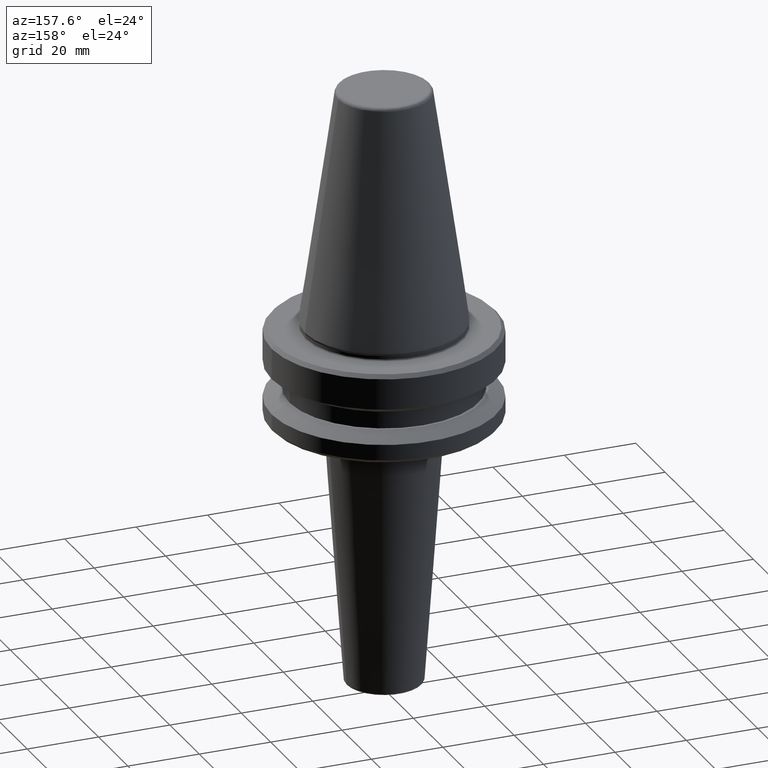
[diagram: clean part render]
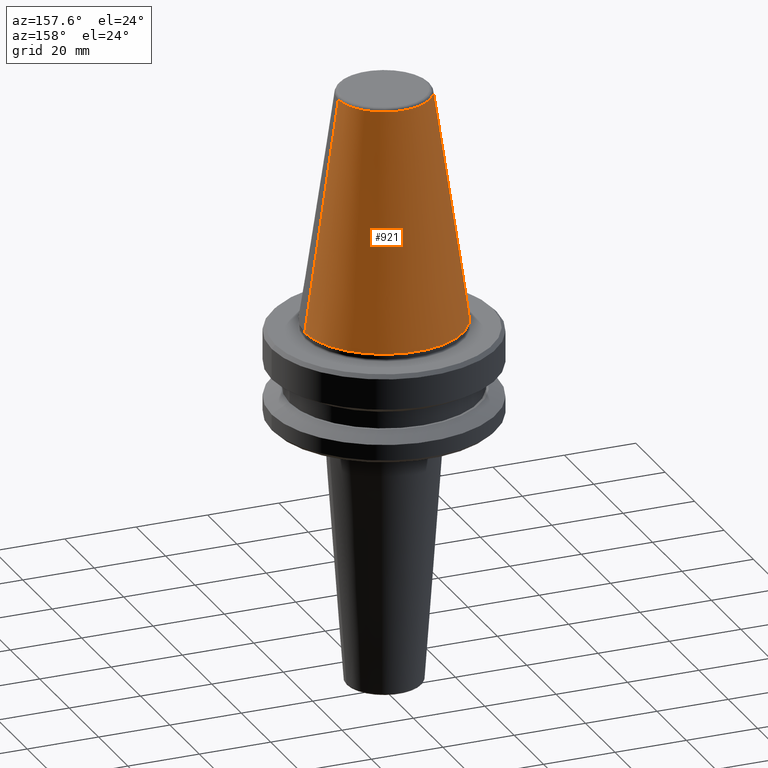
[diagram: same view with one face highlighted and labeled with its STEP entity id]
A machine part, auxiliary view. The second image highlights one B-rep face of the part: STEP entity #921.
In plain terms, the highlighted conical surface has half-angle 8.297 deg.
Its self-contained STEP definition (entity closure, byte-faithful):
#8 = CIRCLE ( 'NONE', #724, 12.81220206925736900 ) ;
#14 = DIRECTION ( 'NONE',  ( -0.0000000000000000000, -0.0000000000000000000, 1.000000000000000000 ) ) ;
#21 = ORIENTED_EDGE ( 'NONE', *, *, #643, .T. ) ;
#75 = EDGE_CURVE ( 'NONE', #84, #112, #98, .T. ) ;
#83 = DIRECTION ( 'NONE',  ( -1.000000000000000000, 0.0000000000000000000, 0.0000000000000000000 ) ) ;
#84 = VERTEX_POINT ( 'NONE', #1024 ) ;
#98 = CIRCLE ( 'NONE', #792, 22.22499999999993700 ) ;
#103 = DIRECTION ( 'NONE',  ( 0.1443081888881795900, 1.767265616126607700E-017, -0.9895327920891826600 ) ) ;
#112 = VERTEX_POINT ( 'NONE', #711 ) ;
#162 = FACE_OUTER_BOUND ( 'NONE', #790, .T. ) ;
#163 = DIRECTION ( 'NONE',  ( 0.0000000000000000000, 0.0000000000000000000, -1.000000000000000000 ) ) ;
#191 = ORIENTED_EDGE ( 'NONE', *, *, #608, .F. ) ;
#204 = AXIS2_PLACEMENT_3D ( 'NONE', #486, #163, #83 ) ;
#277 = VECTOR ( 'NONE', #962, 1000.000000000000000 ) ;
#279 = EDGE_CURVE ( 'NONE', #285, #112, #483, .T. ) ;
#285 = VERTEX_POINT ( 'NONE', #454 ) ;
#335 = DIRECTION ( 'NONE',  ( -0.0000000000000000000, -0.0000000000000000000, 1.000000000000000000 ) ) ;
#350 = DIRECTION ( 'NONE',  ( 1.000000000000000000, 0.0000000000000000000, 0.0000000000000000000 ) ) ;
#389 = ORIENTED_EDGE ( 'NONE', *, *, #279, .F. ) ;
#395 = VECTOR ( 'NONE', #103, 1000.000000000000000 ) ;
#444 = CONICAL_SURFACE ( 'NONE', #204, 12.81220206925736900, 0.1448138077623198300 ) ;
#454 = CARTESIAN_POINT ( 'NONE',  ( -12.81220206925736900, 0.0000000000000000000, -0.8556918111122247000 ) ) ;
#471 = CARTESIAN_POINT ( 'NONE',  ( -12.81220206925736900, 0.0000000000000000000, -0.8556918111122247000 ) ) ;
#483 = LINE ( 'NONE', #471, #277 ) ;
#486 = CARTESIAN_POINT ( 'NONE',  ( 0.0000000000000000000, 0.0000000000000000000, -0.8556918111122247000 ) ) ;
#503 = CARTESIAN_POINT ( 'NONE',  ( 0.0000000000000000000, 0.0000000000000000000, -0.8556918111122247000 ) ) ;
#566 = VERTEX_POINT ( 'NONE', #937 ) ;
#608 = EDGE_CURVE ( 'NONE', #566, #285, #8, .T. ) ;
#643 = EDGE_CURVE ( 'NONE', #566, #84, #814, .T. ) ;
#673 = CARTESIAN_POINT ( 'NONE',  ( 12.81220206925736900, 1.569042225414513200E-015, -0.8556918111122247000 ) ) ;
#711 = CARTESIAN_POINT ( 'NONE',  ( -22.22499999999993700, 2.721777511104985000E-015, -65.40000000000057400 ) ) ;
#724 = AXIS2_PLACEMENT_3D ( 'NONE', #503, #14, #350 ) ;
#790 = EDGE_LOOP ( 'NONE', ( #191, #21, #917, #389 ) ) ;
#792 = AXIS2_PLACEMENT_3D ( 'NONE', #808, #335, #897 ) ;
#808 = CARTESIAN_POINT ( 'NONE',  ( 0.0000000000000000000, 0.0000000000000000000, -65.40000000000057400 ) ) ;
#814 = LINE ( 'NONE', #673, #395 ) ;
#897 = DIRECTION ( 'NONE',  ( 1.000000000000000000, 0.0000000000000000000, 0.0000000000000000000 ) ) ;
#917 = ORIENTED_EDGE ( 'NONE', *, *, #75, .T. ) ;
#921 = ADVANCED_FACE ( 'NONE', ( #162 ), #444, .T. ) ;
#937 = CARTESIAN_POINT ( 'NONE',  ( 12.81220206925736900, 2.145409868259749100E-015, -0.8556918111122247000 ) ) ;
#962 = DIRECTION ( 'NONE',  ( -0.1443081888881795900, 0.0000000000000000000, -0.9895327920891826600 ) ) ;
#1024 = CARTESIAN_POINT ( 'NONE',  ( 22.22499999999993700, 0.0000000000000000000, -65.40000000000057400 ) ) ;